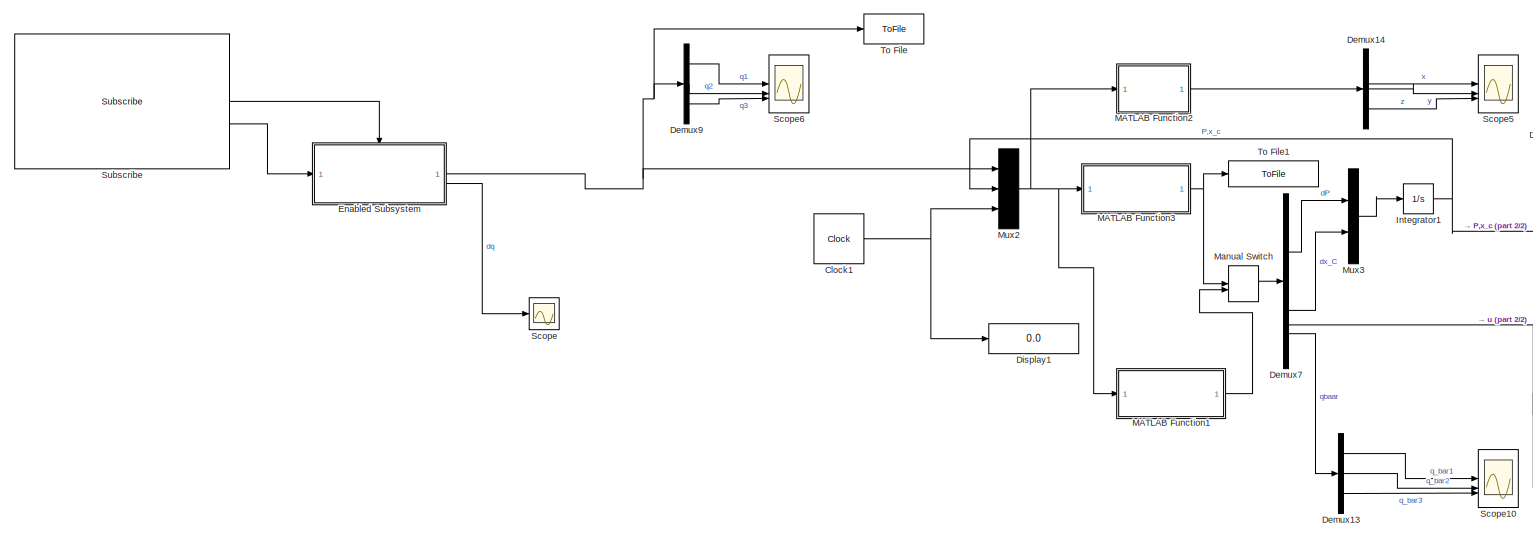
[diagram: root canvas - part 1/2, left side, full height]
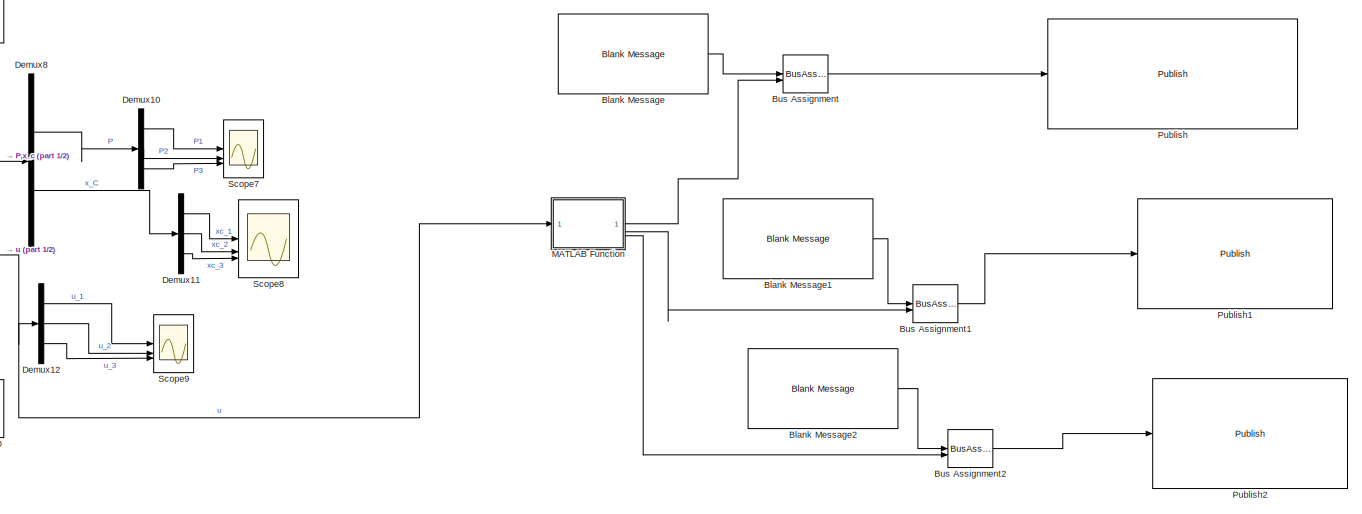
[diagram: root canvas - part 2/2, right side, full height]
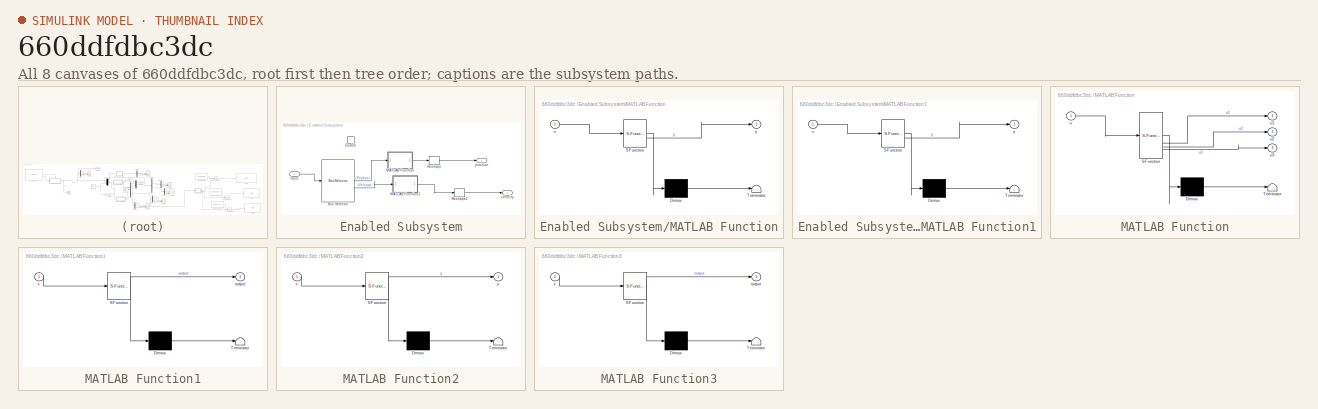
[diagram: thumbnail index - all 8 canvases of the model, root first then tree order]
MODEL slx_660ddfdbc3dc
KIND model
CONFIG AbsTol = auto
CONFIG EnableMultiTasking = off
CONFIG FixedStep = 0.005
CONFIG MaxStep = auto
CONFIG MinStep = auto
CONFIG RelTol = 1e-3
CONFIG SampleTimeConstraint = Unconstrained
CONFIG SolverName = ode8
CONFIG StartTime = 0.0
CONFIG StopTime = 8
BLOCK [Reference] Blank Message  REF=robotlib/Blank Message
  LibrarySourceBlock = roslib/ROS/Blank Message
  SourceBlock = robotlib/Blank Message
  SourceType = ROS Blank Message
BLOCK [Reference] Blank Message1  REF=robotlib/Blank Message
  LibrarySourceBlock = roslib/ROS/Blank Message
  SourceBlock = robotlib/Blank Message
  SourceType = ROS Blank Message
BLOCK [Reference] Blank Message2  REF=robotlib/Blank Message
  LibrarySourceBlock = roslib/ROS/Blank Message
  SourceBlock = robotlib/Blank Message
  SourceType = ROS Blank Message
BLOCK [BusAssignment] Bus Assignment
  AssignedSignals = Data
BLOCK [BusAssignment] Bus Assignment1
  AssignedSignals = Data
BLOCK [BusAssignment] Bus Assignment2
  AssignedSignals = Data
BLOCK [Clock] Clock1
BLOCK [Demux] Demux10
  Outputs = 3
BLOCK [Demux] Demux11
  Outputs = 3
BLOCK [Demux] Demux12
  Outputs = 3
BLOCK [Demux] Demux13
  Outputs = 3
BLOCK [Demux] Demux14
  Outputs = 3
BLOCK [Demux] Demux7
BLOCK [Demux] Demux8
  Outputs = 2
BLOCK [Demux] Demux9
  Outputs = 3
BLOCK [Display] Display1
  Decimation = 30
BLOCK [SubSystem] Enabled Subsystem
  TreatAsAtomicUnit = on
BLOCK [BusSelector] Enabled Subsystem/Bus Selector
  OutputSignals = Position,Velocity
BLOCK [EnablePort] Enabled Subsystem/Enable
BLOCK [Inport] Enabled Subsystem/Input
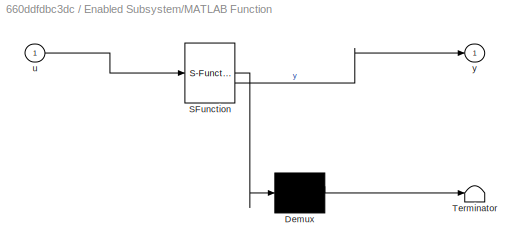
BLOCK [SubSystem] Enabled Subsystem/MATLAB Function
  ErrorFcn = Stateflow.Translate.translate
  LibrarySourceBlock = simulink/User-Defined\nFunctions/MATLAB Function
  PermitHierarchicalResolution = ExplicitOnly
  SFBlockType = MATLAB Function
  TreatAsAtomicUnit = on
BLOCK [Demux] Enabled Subsystem/MATLAB Function/ Demux 
  Outputs = 1
BLOCK [S-Function] Enabled Subsystem/MATLAB Function/ SFunction 
  EnableBusSupport = on
  FunctionName = sf_sfun
  PortCounts = [1 2]
  SFcnIsStateOwnerBlock = off
  SFunctionDeploymentMode = off
  Tag = Stateflow S-Function 13
BLOCK [Terminator] Enabled Subsystem/MATLAB Function/ Terminator 
BLOCK [Inport] Enabled Subsystem/MATLAB Function/u
BLOCK [Outport] Enabled Subsystem/MATLAB Function/y
BLOCK [SubSystem] Enabled Subsystem/MATLAB Function1
  ErrorFcn = Stateflow.Translate.translate
  LibrarySourceBlock = simulink/User-Defined\nFunctions/MATLAB Function
  PermitHierarchicalResolution = ExplicitOnly
  SFBlockType = MATLAB Function
  TreatAsAtomicUnit = on
BLOCK [Demux] Enabled Subsystem/MATLAB Function1/ Demux 
  Outputs = 1
BLOCK [S-Function] Enabled Subsystem/MATLAB Function1/ SFunction 
  EnableBusSupport = on
  FunctionName = sf_sfun
  PortCounts = [1 2]
  SFcnIsStateOwnerBlock = off
  SFunctionDeploymentMode = off
  Tag = Stateflow S-Function 14
BLOCK [Terminator] Enabled Subsystem/MATLAB Function1/ Terminator 
BLOCK [Inport] Enabled Subsystem/MATLAB Function1/u
BLOCK [Outport] Enabled Subsystem/MATLAB Function1/y
BLOCK [Reshape] Enabled Subsystem/Reshape
  OutputDimensionality = Column vector (2-D)
BLOCK [Reshape] Enabled Subsystem/Reshape1
  OutputDimensionality = Column vector (2-D)
BLOCK [Outport] Enabled Subsystem/position
BLOCK [Outport] Enabled Subsystem/velocity
  Port = 2
BLOCK [Integrator] Integrator1
  InitialCondition = [0;0;0;0;0;0]
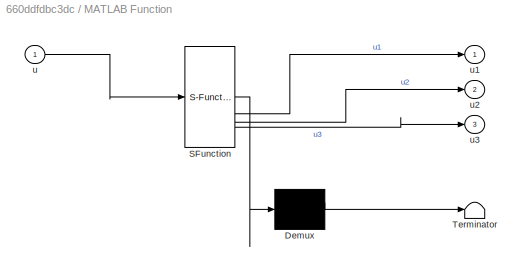
BLOCK [SubSystem] MATLAB Function
  ErrorFcn = Stateflow.Translate.translate
  LibrarySourceBlock = simulink/User-Defined\nFunctions/MATLAB Function
  PermitHierarchicalResolution = ExplicitOnly
  SFBlockType = MATLAB Function
  TreatAsAtomicUnit = on
BLOCK [Demux] MATLAB Function/ Demux 
  Outputs = 1
BLOCK [S-Function] MATLAB Function/ SFunction 
  EnableBusSupport = on
  FunctionName = sf_sfun
  PortCounts = [1 4]
  SFcnIsStateOwnerBlock = off
  SFunctionDeploymentMode = off
  Tag = Stateflow S-Function 3
BLOCK [Terminator] MATLAB Function/ Terminator 
BLOCK [Inport] MATLAB Function/u
BLOCK [Outport] MATLAB Function/u1
BLOCK [Outport] MATLAB Function/u2
  Port = 2
BLOCK [Outport] MATLAB Function/u3
  Port = 3
BLOCK [SubSystem] MATLAB Function1
  ErrorFcn = Stateflow.Translate.translate
  PermitHierarchicalResolution = ExplicitOnly
  SFBlockType = MATLAB Function
  TreatAsAtomicUnit = on
BLOCK [Demux] MATLAB Function1/ Demux 
  Outputs = 1
BLOCK [S-Function] MATLAB Function1/ SFunction 
  EnableBusSupport = on
  FunctionName = sf_sfun
  PortCounts = [1 2]
  SFcnIsStateOwnerBlock = off
  SFunctionDeploymentMode = off
  Tag = Stateflow S-Function 2
BLOCK [Terminator] MATLAB Function1/ Terminator 
BLOCK [Outport] MATLAB Function1/output
BLOCK [Inport] MATLAB Function1/x
BLOCK [SubSystem] MATLAB Function2
  ErrorFcn = Stateflow.Translate.translate
  PermitHierarchicalResolution = ExplicitOnly
  SFBlockType = MATLAB Function
  TreatAsAtomicUnit = on
BLOCK [Demux] MATLAB Function2/ Demux 
  Outputs = 1
BLOCK [S-Function] MATLAB Function2/ SFunction 
  EnableBusSupport = on
  FunctionName = sf_sfun
  PortCounts = [1 2]
  SFcnIsStateOwnerBlock = off
  SFunctionDeploymentMode = off
  Tag = Stateflow S-Function 1
BLOCK [Terminator] MATLAB Function2/ Terminator 
BLOCK [Inport] MATLAB Function2/x
BLOCK [Outport] MATLAB Function2/y
BLOCK [SubSystem] MATLAB Function3
  ErrorFcn = Stateflow.Translate.translate
  PermitHierarchicalResolution = ExplicitOnly
  SFBlockType = MATLAB Function
  TreatAsAtomicUnit = on
BLOCK [Demux] MATLAB Function3/ Demux 
  Outputs = 1
BLOCK [S-Function] MATLAB Function3/ SFunction 
  EnableBusSupport = on
  FunctionName = sf_sfun
  PortCounts = [1 2]
  SFcnIsStateOwnerBlock = off
  SFunctionDeploymentMode = off
  Tag = Stateflow S-Function 4
BLOCK [Terminator] MATLAB Function3/ Terminator 
BLOCK [Outport] MATLAB Function3/output
BLOCK [Inport] MATLAB Function3/x
BLOCK [ManualSwitch] Manual Switch
BLOCK [Mux] Mux2
  DisplayOption = bar
  Inputs = 3
BLOCK [Mux] Mux3
  DisplayOption = bar
  Inputs = 2
BLOCK [Reference] Publish  REF=robotlib/Publish
  LibrarySourceBlock = roslib/ROS/Publish
  SourceBlock = robotlib/Publish
  SourceType = ROS Publish
BLOCK [Reference] Publish1  REF=robotlib/Publish
  LibrarySourceBlock = roslib/ROS/Publish
  SourceBlock = robotlib/Publish
  SourceType = ROS Publish
BLOCK [Reference] Publish2  REF=robotlib/Publish
  LibrarySourceBlock = roslib/ROS/Publish
  SourceBlock = robotlib/Publish
  SourceType = ROS Publish
BLOCK [Scope] Scope
  Floating = off
  NumInputPorts = 1
  ScopeSpecificationString = Simulink.scopes.TimeScopeBlockCfg('CurrentConfiguration', extmgr.ConfigurationSet(extmgr.Configuration('Core','General UI',true),extmgr.Configuration('Core','Source UI',true),extmgr.Configuration('Sources','WiredSimulink',true,'DataLoggingVariableName','ScopeData1'),extmgr.Configuration('Visuals','Time Domain',true,'SerializedDisplays',{struct('MinYLimReal','-0.64881','MaxYLimReal','1.10432','YLab...<+1407ch>
BLOCK [Scope] Scope10
  Floating = off
  NumInputPorts = 3
  ScopeSpecificationString = Simulink.scopes.TimeScopeBlockCfg('CurrentConfiguration', extmgr.ConfigurationSet(extmgr.Configuration('Core','General UI',true),extmgr.Configuration('Core','Source UI',true),extmgr.Configuration('Sources','WiredSimulink',true,'DataLoggingVariableName','ScopeData2'),extmgr.Configuration('Visuals','Time Domain',true,'SerializedDisplays',{struct('MinYLimReal','-2.13773','MaxYLimReal','1.7573','YLabe...<+1480ch>
BLOCK [Scope] Scope5
  Floating = off
  NumInputPorts = 3
  ScopeSpecificationString = Simulink.scopes.TimeScopeBlockCfg('CurrentConfiguration', extmgr.ConfigurationSet(extmgr.Configuration('Core','General UI',true),extmgr.Configuration('Core','Source UI',true),extmgr.Configuration('Sources','WiredSimulink',true,'DataLoggingVariableName','ScopeData3'),extmgr.Configuration('Visuals','Time Domain',true,'SerializedDisplays',{struct('MinYLimReal','-0.57885','MaxYLimReal','0.5035','YLabe...<+1438ch>
BLOCK [Scope] Scope6
  Floating = off
  NumInputPorts = 3
  ScopeSpecificationString = Simulink.scopes.TimeScopeBlockCfg('CurrentConfiguration', extmgr.ConfigurationSet(extmgr.Configuration('Core','General UI',true),extmgr.Configuration('Core','Source UI',true),extmgr.Configuration('Sources','WiredSimulink',true,'DataLoggingVariableName','ScopeData4'),extmgr.Configuration('Visuals','Time Domain',true,'SerializedDisplays',{struct('MinYLimReal','-0.26835','MaxYLimReal','2.41513','YLab...<+1424ch>
BLOCK [Scope] Scope7
  Floating = off
  NumInputPorts = 3
  ScopeSpecificationString = Simulink.scopes.TimeScopeBlockCfg('CurrentConfiguration', extmgr.ConfigurationSet(extmgr.Configuration('Core','General UI',true),extmgr.Configuration('Core','Source UI',true),extmgr.Configuration('Sources','WiredSimulink',true,'DataLoggingVariableName','ScopeData5'),extmgr.Configuration('Visuals','Time Domain',true,'SerializedDisplays',{struct('MinYLimReal','-6.20146','MaxYLimReal','38.8908','YLab...<+1400ch>
BLOCK [Scope] Scope8
  Floating = off
  NumInputPorts = 3
  ScopeSpecificationString = Simulink.scopes.TimeScopeBlockCfg('CurrentConfiguration', extmgr.ConfigurationSet(extmgr.Configuration('Core','General UI',true),extmgr.Configuration('Core','Source UI',true),extmgr.Configuration('Sources','WiredSimulink',true,'DataLoggingVariableName','ScopeData6'),extmgr.Configuration('Visuals','Time Domain',true,'SerializedDisplays',{struct('MinYLimReal','-0.14892','MaxYLimReal','0.20413','YLab...<+1407ch>
BLOCK [Scope] Scope9
  Floating = off
  NumInputPorts = 3
  ScopeSpecificationString = Simulink.scopes.TimeScopeBlockCfg('CurrentConfiguration', extmgr.ConfigurationSet(extmgr.Configuration('Core','General UI',true),extmgr.Configuration('Core','Source UI',true),extmgr.Configuration('Sources','WiredSimulink',true),extmgr.Configuration('Visuals','Time Domain',true,'SerializedDisplays',{struct('MinYLimReal','-13.35829','MaxYLimReal','18.49601','YLabelReal','','MinYLimMag','0.00000','Ma...<+1396ch>
BLOCK [Reference] Subscribe  REF=robotlib/Subscribe
  LibrarySourceBlock = roslib/ROS/Subscribe
  SourceBlock = robotlib/Subscribe
  SourceType = ROS Subscribe
BLOCK [ToFile] To File
  Filename = q_pera.mat
  MatrixName = q
  SaveFormat = Timeseries
BLOCK [ToFile] To File1
  Filename = output_pera.mat
  MatrixName = q
  SaveFormat = Timeseries
LINE Blank Message1:1 -> Bus Assignment1:1
LINE Blank Message2:1 -> Bus Assignment2:1
LINE Blank Message:1 -> Bus Assignment:1
LINE Bus Assignment1:1 -> Publish1:1
LINE Bus Assignment2:1 -> Publish2:1
LINE Bus Assignment:1 -> Publish:1
NET Clock1:1 -> Display1:1, Mux2:3
LINE Demux10:1 -> Scope7:1
LINE Demux10:2 -> Scope7:2
LINE Demux10:3 -> Scope7:3
LINE Demux11:1 -> Scope8:1
LINE Demux11:2 -> Scope8:2
LINE Demux11:3 -> Scope8:3
LINE Demux12:1 -> Scope9:1
LINE Demux12:2 -> Scope9:2
LINE Demux12:3 -> Scope9:3
LINE Demux13:1 -> Scope10:1
LINE Demux13:2 -> Scope10:2
LINE Demux13:3 -> Scope10:3
LINE Demux14:1 -> Scope5:1
LINE Demux14:2 -> Scope5:2
LINE Demux14:3 -> Scope5:3
LINE Demux7:1 -> Mux3:1
LINE Demux7:2 -> Mux3:2
NET Demux7:3 -> Demux12:1, MATLAB Function:1
LINE Demux7:4 -> Demux13:1
LINE Demux8:1 -> Demux10:1
LINE Demux8:2 -> Demux11:1
LINE Demux9:1 -> Scope6:1
LINE Demux9:2 -> Scope6:2
LINE Demux9:3 -> Scope6:3
LINE Enabled Subsystem/Bus Selector:1 -> Enabled Subsystem/MATLAB Function:1
LINE Enabled Subsystem/Bus Selector:2 -> Enabled Subsystem/MATLAB Function1:1
LINE Enabled Subsystem/Input:1 -> Enabled Subsystem/Bus Selector:1
LINE Enabled Subsystem/MATLAB Function1:1 -> Enabled Subsystem/Reshape1:1
LINE Enabled Subsystem/MATLAB Function:1 -> Enabled Subsystem/Reshape:1
LINE Enabled Subsystem/Reshape1:1 -> Enabled Subsystem/velocity:1
LINE Enabled Subsystem/Reshape:1 -> Enabled Subsystem/position:1
NET Enabled Subsystem:1 -> Demux9:1, Mux2:1, To File:1
LINE Enabled Subsystem:2 -> Scope:1
NET Integrator1:1 -> Demux8:1, Mux2:2
LINE MATLAB Function1:1 -> Manual Switch:2
LINE MATLAB Function2:1 -> Demux14:1
NET MATLAB Function3:1 -> Manual Switch:1, To File1:1
LINE MATLAB Function:1 -> Bus Assignment:2
LINE MATLAB Function:2 -> Bus Assignment1:2
LINE MATLAB Function:3 -> Bus Assignment2:2
LINE Manual Switch:1 -> Demux7:1
NET Mux2:1 -> MATLAB Function1:1, MATLAB Function2:1, MATLAB Function3:1
LINE Mux3:1 -> Integrator1:1
LINE Subscribe:1 -> Enabled Subsystem:enable
LINE Subscribe:2 -> Enabled Subsystem:1
note: NET lines group one-source signal fan-out (src -> all destinations, sorted); 1:1 wires keep LINE
CHART MATLAB Function1 states=1 transitions=1
  STATE_LABEL 'eML_blk_kernel()'
  STATE_LABEL 'SCRIPT:\nfunction output = fcn(x)\nq1 = x(1);\nq2 = x(2);\nq3 = x(3);\nq = [q1; q2; q3]; % Joint positions\nP1 = x(4);\nP2 = x(5);\nP3 = x(6);\nP = [P1; P2; P3]; % Transformed momenta\nx_c1 = x(7);\nx_c2 = x(8);\nx_c3 = x(9);\nx_c = [x_c1; x_c2; x_c3]; % Artificial state\nt = x(10);\n\n % Trajectory: Circle parameters\nr = .2; % Radius of circle in meters\nT = 30; % Period for drawing a circle in seconds\n% Trajecto...<+2352ch>'
CHART MATLAB Function states=1 transitions=1
  STATE_LABEL 'eML_blk_kernel()'
  STATE_LABEL 'SCRIPT:\nfunction [u1,u2,u3]= fcn(u)\nu1=u(1)\nu2=u(2)\nu3=u(3)'
CHART MATLAB Function3 states=1 transitions=1
  STATE_LABEL 'eML_blk_kernel()'
  STATE_LABEL 'SCRIPT:\nfunction output = fcn(x)\nq1 = x(1);\nq2 = x(2)-pi/2;\nq3 = x(3);\nq = [q1; q2; q3]; % Joint positions\nP1 = x(4);\nP2 = x(5);\nP3 = x(6);\nP = [P1; P2; P3]; % Transformed momenta\nx_c1 = x(7);\nx_c2 = x(8);\nx_c3 = x(9);\nx_c = [x_c1; x_c2; x_c3]; % Artificial state\nt = x(10);\nf=2;\n\nmeat_traj_1=[-0.000036284073948  -0.000077250765261   0.009269322838493     0.063503649041252   0.202213438405126;\n   0...<+3608ch>'
CHART Enabled
Subsystem/MATLAB Function states=1 transitions=1
  STATE_LABEL 'eML_blk_kernel()'
  STATE_LABEL 'SCRIPT:\nfunction y = fcn(u)\ny=[0;0;0]\n\ny(1)=u(1)\ny(2)=u(2)\ny(3)=u(3)\n'
CHART Enabled
Subsystem/MATLAB Function1 states=1 transitions=1
  STATE_LABEL 'eML_blk_kernel()'
  STATE_LABEL 'SCRIPT:\nfunction y = fcn(u)\ny=[0;0;0]\n\ny(1)=u(1)\ny(2)=u(2)\ny(3)=u(3)\n\n'
CHART MATLAB Function2 states=1 transitions=1
  STATE_LABEL 'eML_blk_kernel()'
  STATE_LABEL 'SCRIPT:\nfunction y = fcn(x)\nq1 = x(1);\nq2 = x(2);\nq3 = x(3);\nq = [q1; q2; q3]; % Joint positions\nP1 = x(4);\nP2 = x(5);\nP3 = x(6);\nP = [P1; P2; P3]; % Transformed momenta\nx_c1 = x(7);\nx_c2 = x(8);\nx_c3 = x(9);\nx_c = [x_c1; x_c2; x_c3]; % Artificial state\nt = x(10);\nT_2=2;\n\ntrajectory_x_pera = [0.0000   -0.0060    0.1036   -0.3548    0.5929];\ntrajectory_y_pera =[ -0.0000    0.0000    0.0000    0.050...<+2395ch>'
CHART  states=0 transitions=0
CHART  states=0 transitions=0
CHART  states=0 transitions=0
CHART  states=0 transitions=0
CHART  states=0 transitions=0
CHART  states=0 transitions=0
